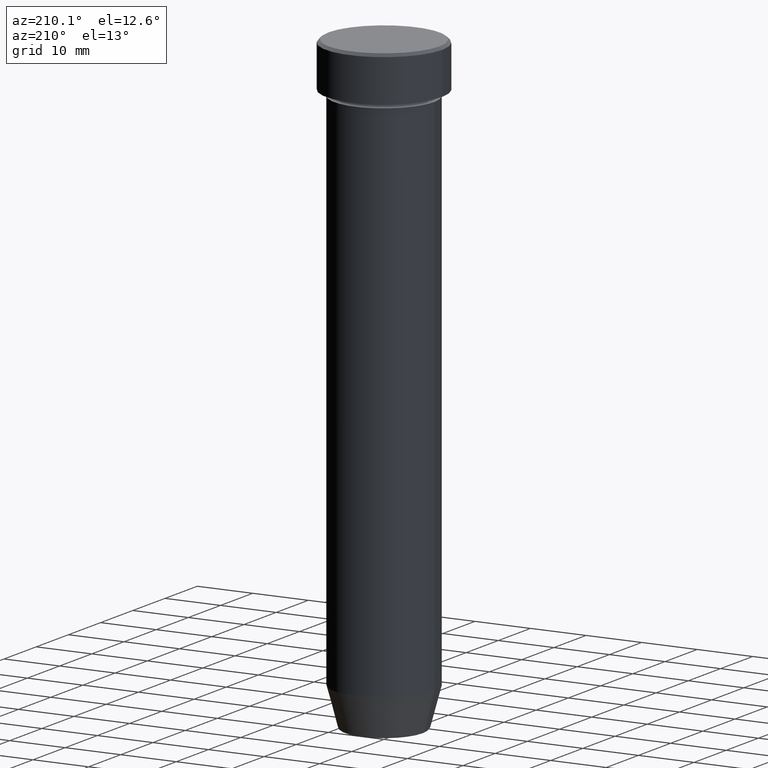
[diagram: clean part render]
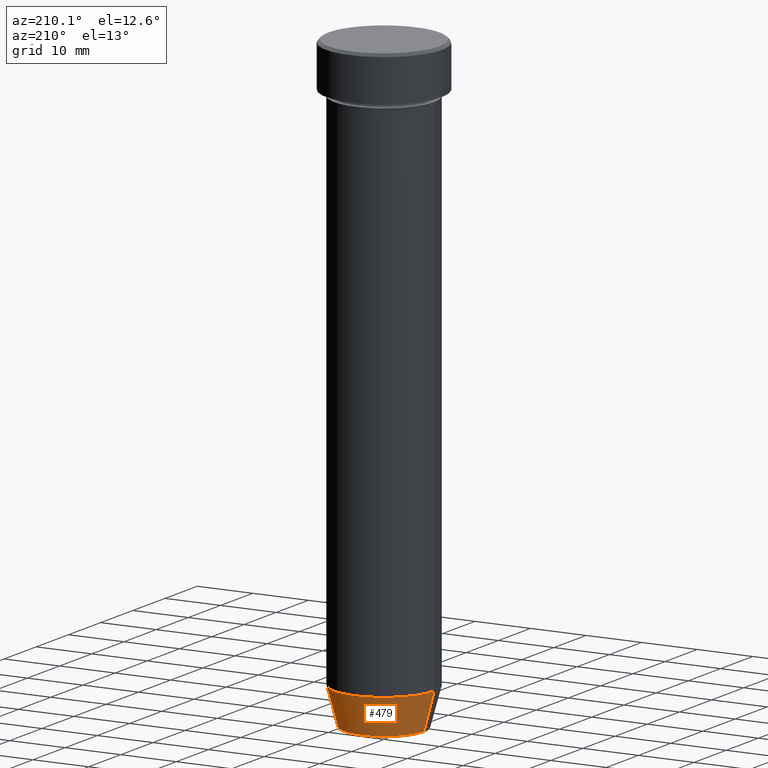
[diagram: same view with one face highlighted and labeled with its STEP entity id]
A machine part, auxiliary view. The second image highlights one B-rep face of the part: STEP entity #479.
In plain terms, the highlighted conical surface has half-angle 15 deg.
Its self-contained STEP definition (entity closure, byte-faithful):
#8 = AXIS2_PLACEMENT_3D ( 'NONE', #187, #182, #559 ) ;
#14 = DIRECTION ( 'NONE',  ( -0.000000000000000000, -0.000000000000000000, 1.000000000000000000 ) ) ;
#18 = CARTESIAN_POINT ( 'NONE',  ( 0.000000000000000000, 0.000000000000000000, -102.9999999999999858 ) ) ;
#58 = DIRECTION ( 'NONE',  ( -0.2588190451025210725, 3.169619151431769255E-17, 0.9659258262890680902 ) ) ;
#60 = ORIENTED_EDGE ( 'NONE', *, *, #192, .F. ) ;
#66 = CARTESIAN_POINT ( 'NONE',  ( 7.124355652982136355, 0.000000000000000000, -109.9999999999999858 ) ) ;
#67 = CIRCLE ( 'NONE', #525, 9.000000000000000000 ) ;
#72 = DIRECTION ( 'NONE',  ( -1.000000000000000000, 0.000000000000000000, 0.000000000000000000 ) ) ;
#96 = CONICAL_SURFACE ( 'NONE', #8, 7.124355652982136355, 0.2617993877991497964 ) ;
#107 = VERTEX_POINT ( 'NONE', #270 ) ;
#110 = VERTEX_POINT ( 'NONE', #275 ) ;
#123 = VECTOR ( 'NONE', #58, 1000.000000000000114 ) ;
#153 = CARTESIAN_POINT ( 'NONE',  ( 0.000000000000000000, 0.000000000000000000, -109.6294095225512564 ) ) ;
#182 = DIRECTION ( 'NONE',  ( -0.000000000000000000, -0.000000000000000000, 1.000000000000000000 ) ) ;
#187 = CARTESIAN_POINT ( 'NONE',  ( 0.000000000000000000, 0.000000000000000000, -109.9999999999999858 ) ) ;
#190 = VERTEX_POINT ( 'NONE', #338 ) ;
#192 = EDGE_CURVE ( 'NONE', #190, #536, #307, .T. ) ;
#231 = ORIENTED_EDGE ( 'NONE', *, *, #249, .T. ) ;
#238 = EDGE_CURVE ( 'NONE', #107, #110, #255, .T. ) ;
#249 = EDGE_CURVE ( 'NONE', #190, #107, #340, .T. ) ;
#255 = LINE ( 'NONE', #482, #123 ) ;
#258 = DIRECTION ( 'NONE',  ( -0.000000000000000000, -0.000000000000000000, 1.000000000000000000 ) ) ;
#270 = CARTESIAN_POINT ( 'NONE',  ( -7.223655072137189492, 9.934123627281763137E-16, -109.6294095225512564 ) ) ;
#275 = CARTESIAN_POINT ( 'NONE',  ( -9.000000000000000000, 1.102182119232617714E-15, -102.9999999999999858 ) ) ;
#297 = EDGE_CURVE ( 'NONE', #536, #110, #67, .T. ) ;
#303 = ORIENTED_EDGE ( 'NONE', *, *, #238, .T. ) ;
#305 = VECTOR ( 'NONE', #435, 1000.000000000000114 ) ;
#307 = LINE ( 'NONE', #66, #305 ) ;
#334 = FACE_OUTER_BOUND ( 'NONE', #591, .T. ) ;
#338 = CARTESIAN_POINT ( 'NONE',  ( 7.223655072137189492, 0.000000000000000000, -109.6294095225512564 ) ) ;
#340 = CIRCLE ( 'NONE', #478, 7.223655072137189492 ) ;
#391 = CARTESIAN_POINT ( 'NONE',  ( 9.000000000000000000, 0.000000000000000000, -102.9999999999999858 ) ) ;
#435 = DIRECTION ( 'NONE',  ( 0.2588190451025210725, 0.000000000000000000, 0.9659258262890680902 ) ) ;
#478 = AXIS2_PLACEMENT_3D ( 'NONE', #153, #14, #72 ) ;
#479 = ADVANCED_FACE ( 'NONE', ( #334 ), #96, .T. ) ;
#482 = CARTESIAN_POINT ( 'NONE',  ( -7.124355652982136355, 8.724819346411924116E-16, -109.9999999999999858 ) ) ;
#495 = ORIENTED_EDGE ( 'NONE', *, *, #297, .F. ) ;
#525 = AXIS2_PLACEMENT_3D ( 'NONE', #18, #258, #534 ) ;
#534 = DIRECTION ( 'NONE',  ( 1.000000000000000000, 0.000000000000000000, 0.000000000000000000 ) ) ;
#536 = VERTEX_POINT ( 'NONE', #391 ) ;
#559 = DIRECTION ( 'NONE',  ( 1.000000000000000000, 0.000000000000000000, 0.000000000000000000 ) ) ;
#591 = EDGE_LOOP ( 'NONE', ( #231, #303, #495, #60 ) ) ;